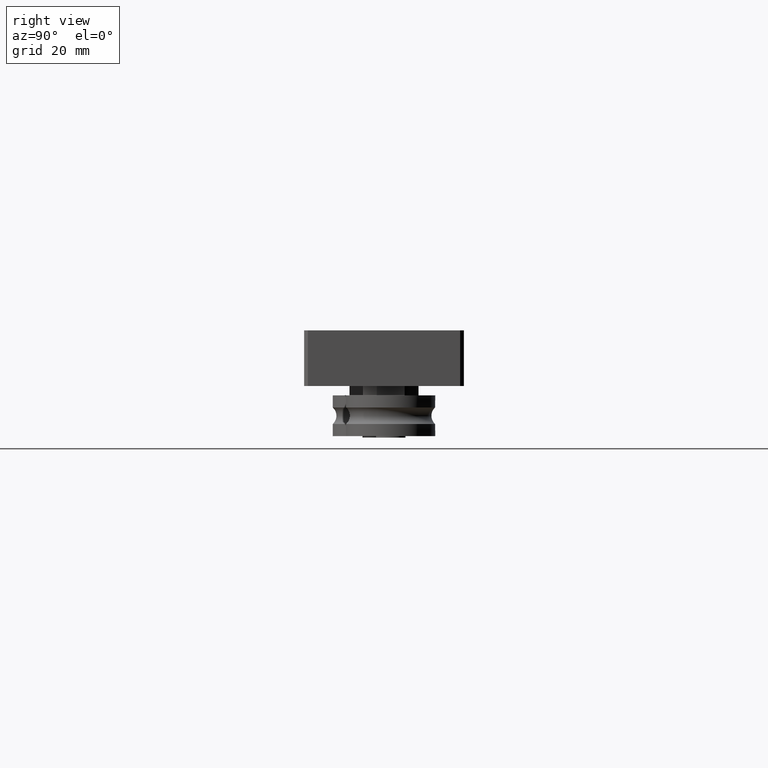
[diagram: clean part render]
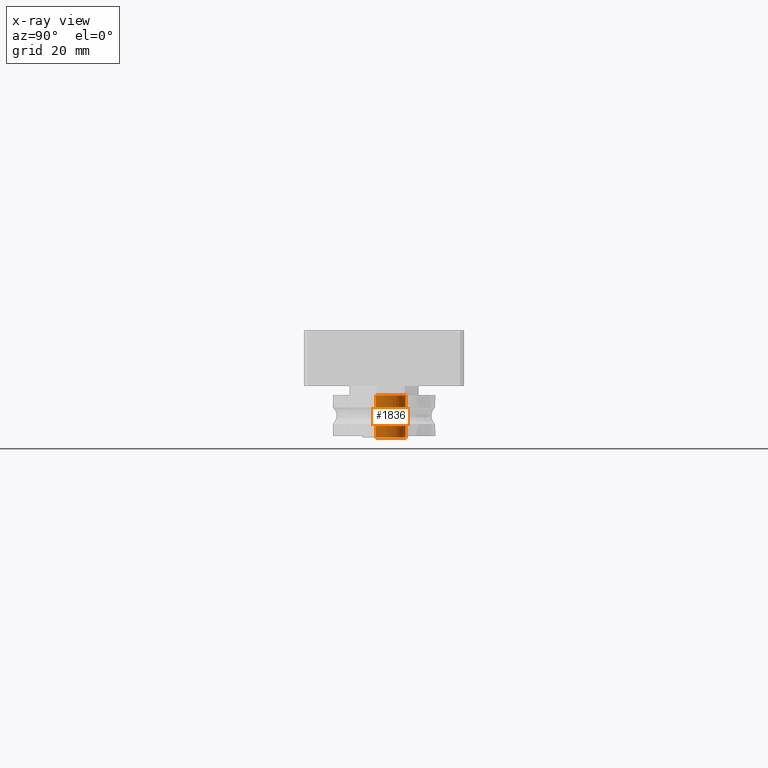
[diagram: x-ray — body ghosted, one internal face saturated and labeled with its STEP entity id]
A machine part, right view, then the same camera in x-ray: the body is ghosted and one INTERNAL B-rep face — a face not visible from any outside direction — is saturated and labeled: STEP entity #1836.
In plain terms, the highlighted cylindrical surface (bore or boss wall) has radius 4 mm, axis along (0, 0, -1).
Its self-contained STEP definition (entity closure, byte-faithful):
#169=CYLINDRICAL_SURFACE('',#2160,4.);
#301=CIRCLE('',#2161,4.);
#302=CIRCLE('',#2162,4.);
#406=FACE_OUTER_BOUND('',#554,.T.);
#554=EDGE_LOOP('',(#1530,#1531,#1532,#1533));
#702=LINE('',#3218,#824);
#824=VECTOR('',#2612,4.);
#966=VERTEX_POINT('',#3215);
#967=VERTEX_POINT('',#3217);
#1167=EDGE_CURVE('',#966,#966,#301,.T.);
#1168=EDGE_CURVE('',#966,#967,#702,.T.);
#1169=EDGE_CURVE('',#967,#967,#302,.T.);
#1530=ORIENTED_EDGE('',*,*,#1167,.T.);
#1531=ORIENTED_EDGE('',*,*,#1168,.T.);
#1532=ORIENTED_EDGE('',*,*,#1169,.F.);
#1533=ORIENTED_EDGE('',*,*,#1168,.F.);
#1836=ADVANCED_FACE('',(#406),#169,.T.);
#2160=AXIS2_PLACEMENT_3D('',#3214,#2608,#2609);
#2161=AXIS2_PLACEMENT_3D('',#3216,#2610,#2611);
#2162=AXIS2_PLACEMENT_3D('',#3219,#2613,#2614);
#2608=DIRECTION('center_axis',(0.,-9.73879846162418E-17,1.));
#2609=DIRECTION('ref_axis',(0.,1.,9.73879846162418E-17));
#2610=DIRECTION('center_axis',(0.,-9.73879846162418E-17,1.));
#2611=DIRECTION('ref_axis',(1.,0.,0.));
#2612=DIRECTION('',(0.,-9.73879846162418E-17,1.));
#2613=DIRECTION('center_axis',(0.,0.,1.));
#2614=DIRECTION('ref_axis',(0.,1.,9.73879846162418E-17));
#3214=CARTESIAN_POINT('Origin',(0.,-5.55111512312578E-16,4.15));
#3215=CARTESIAN_POINT('',(4.89858719658941E-16,-4.,-1.55));
#3216=CARTESIAN_POINT('Origin',(0.,0.,-1.55));
#3217=CARTESIAN_POINT('',(4.89858719658941E-16,-4.,9.85));
#3218=CARTESIAN_POINT('',(4.89858719658941E-16,-4.,4.15));
#3219=CARTESIAN_POINT('Origin',(0.,-1.11022302462516E-15,9.85));